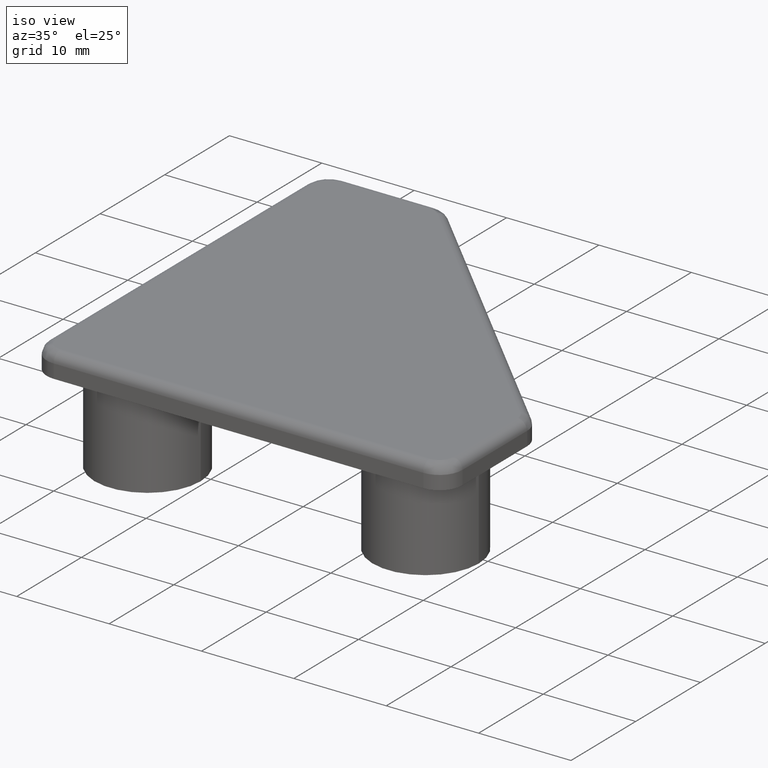
[diagram: clean part render]
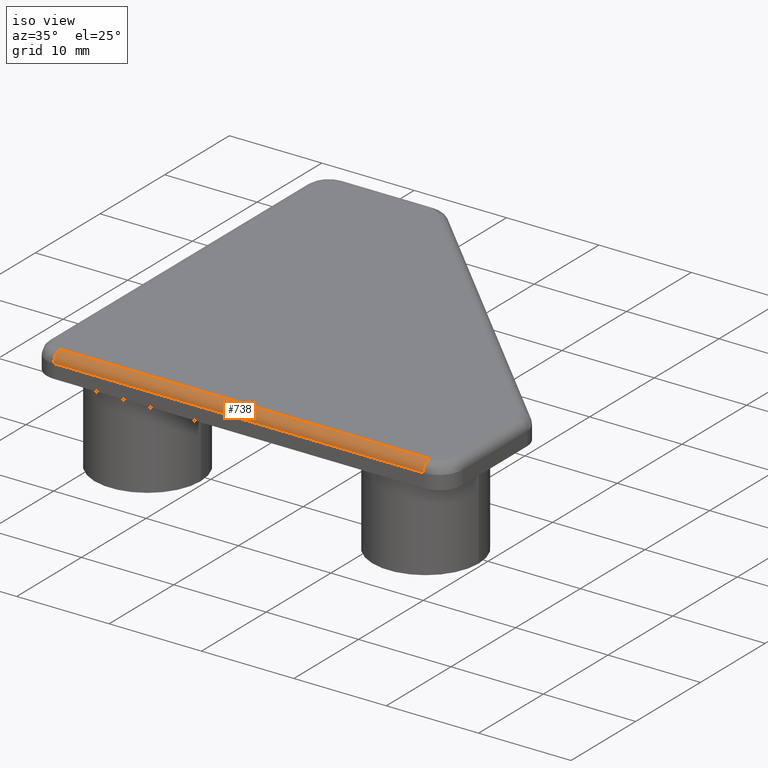
[diagram: same view with one face highlighted and labeled with its STEP entity id]
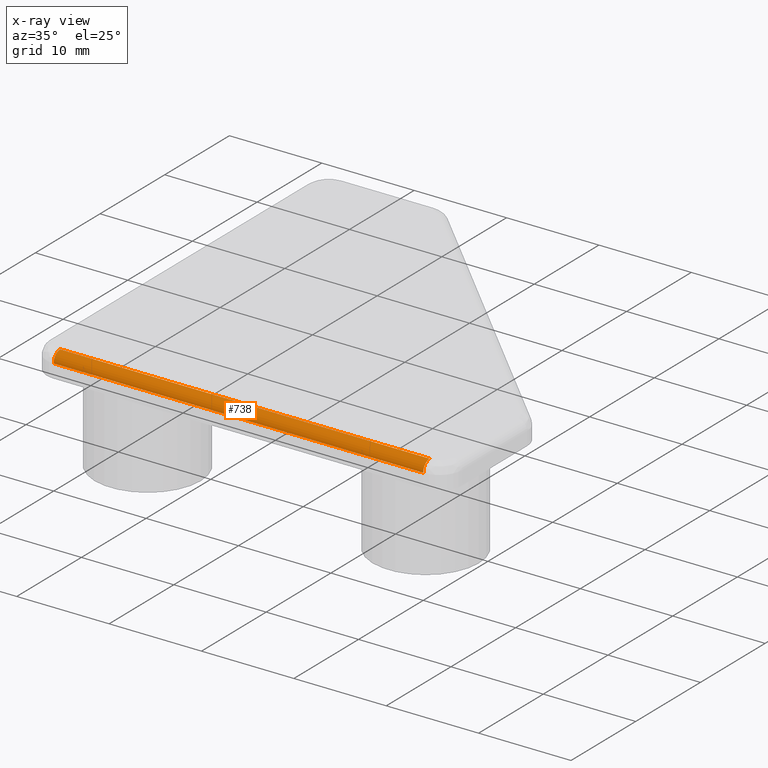
[diagram: x-ray of the same camera — body ghosted, the highlighted face saturated]
A machine part, iso view. The second image highlights one B-rep face of the part: STEP entity #738.
The next image is the same camera in x-ray: the body ghosted, the highlighted face saturated — about 0% of this face is hidden behind the body in this view.
In plain terms, the highlighted cylindrical surface (edge-blend (fillet) strip) has radius 1 mm, axis along (-1, 0, 0).
Its self-contained STEP definition (entity closure, byte-faithful):
#291=CARTESIAN_POINT('',(-19.999976890545359,1.000000499999873,2.499999999989996));
#292=VERTEX_POINT('',#291);
#300=CARTESIAN_POINT('',(19.999976703044741,1.000000499999827,2.499999999989996));
#301=VERTEX_POINT('',#300);
#302=CARTESIAN_POINT('',(-19.999976890545359,1.000000499999873,2.499999999989996));
#303=DIRECTION('',(1.0,0.0,0.0));
#304=VECTOR('',#303,39.999953593590099);
#305=LINE('',#302,#304);
#306=EDGE_CURVE('',#292,#301,#305,.T.);
#461=CARTESIAN_POINT('',(-19.999976890545359,0.000000499999874,1.499999999989996));
#462=VERTEX_POINT('',#461);
#485=CARTESIAN_POINT('',(19.999976703044741,0.000000499999827,1.499999999989996));
#486=VERTEX_POINT('',#485);
#493=CARTESIAN_POINT('',(-19.999976890545359,0.000000499999874,1.499999999989996));
#494=DIRECTION('',(1.0,0.0,0.0));
#495=VECTOR('',#494,39.999953593590099);
#496=LINE('',#493,#495);
#497=EDGE_CURVE('',#462,#486,#496,.T.);
#710=CARTESIAN_POINT('',(19.999976703044741,1.000000499999827,1.499999999989996));
#711=DIRECTION('',(-1.0,0.0,0.0));
#712=DIRECTION('',(0.0,-1.0,0.0));
#713=AXIS2_PLACEMENT_3D('',#710,#711,#712);
#714=CIRCLE('',#713,1.0);
#715=EDGE_CURVE('',#486,#301,#714,.T.);
#721=CARTESIAN_POINT('',(-19.999976890545359,1.000000499999873,1.499999999989996));
#722=DIRECTION('',(-1.0,0.0,0.0));
#723=DIRECTION('',(0.0,-1.0,0.0));
#724=AXIS2_PLACEMENT_3D('',#721,#722,#723);
#725=CYLINDRICAL_SURFACE('',#724,1.000000000000000);
#726=ORIENTED_EDGE('',*,*,#715,.T.);
#727=ORIENTED_EDGE('',*,*,#306,.F.);
#728=CARTESIAN_POINT('',(-19.999976890545359,1.000000499999873,1.499999999989996));
#729=DIRECTION('',(-1.0,0.0,0.0));
#730=DIRECTION('',(0.0,-1.0,0.0));
#731=AXIS2_PLACEMENT_3D('',#728,#729,#730);
#732=CIRCLE('',#731,1.000000000000000);
#733=EDGE_CURVE('',#462,#292,#732,.T.);
#734=ORIENTED_EDGE('',*,*,#733,.F.);
#735=ORIENTED_EDGE('',*,*,#497,.T.);
#736=EDGE_LOOP('',(#726,#727,#734,#735));
#737=FACE_OUTER_BOUND('',#736,.T.);
#738=ADVANCED_FACE('',(#737),#725,.T.);